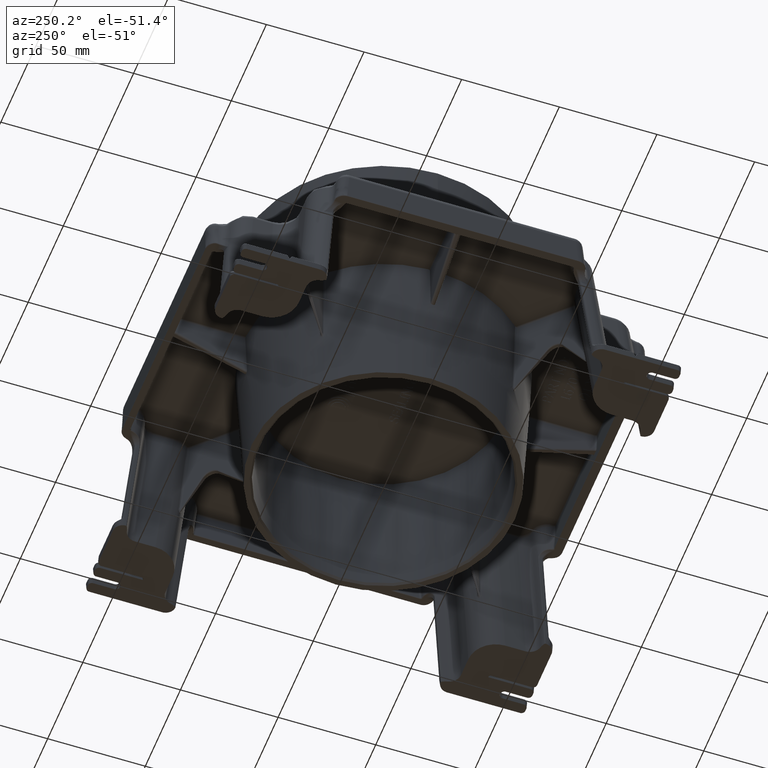
[diagram: clean part render]
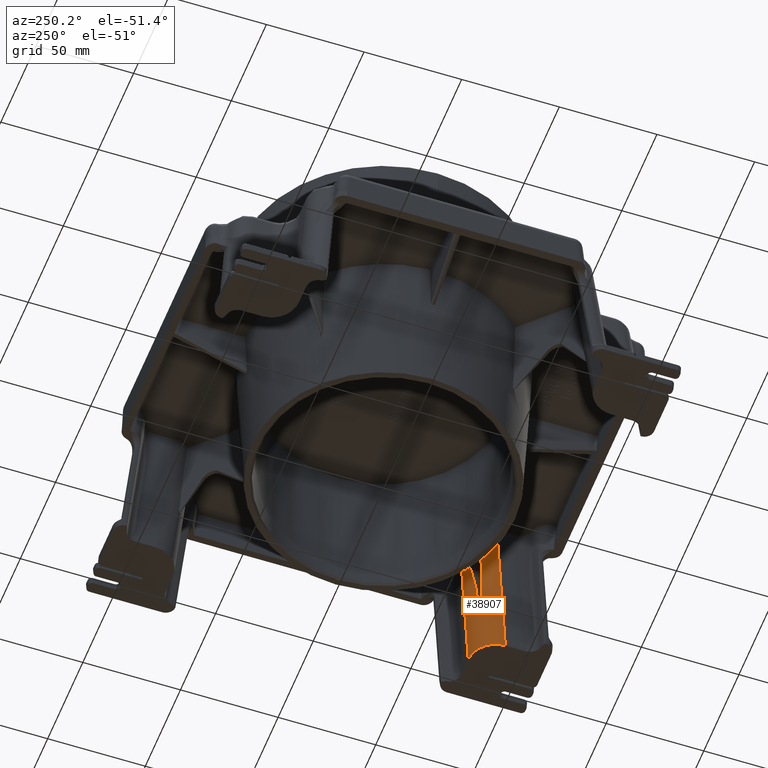
[diagram: same view with one face highlighted and labeled with its STEP entity id]
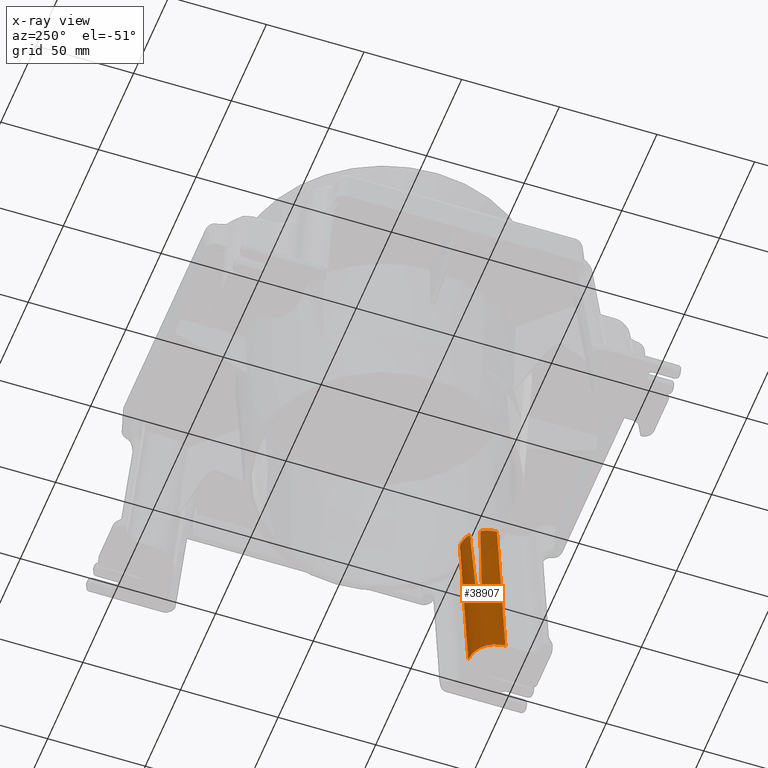
[diagram: x-ray of the same camera — body ghosted, the highlighted face saturated]
A machine part, auxiliary view. The second image highlights one B-rep face of the part: STEP entity #38907.
The next image is the same camera in x-ray: the body ghosted, the highlighted face saturated — about 18% of this face is hidden behind the body in this view.
In plain terms, the highlighted cylindrical surface (edge-blend (fillet) strip) has radius 14 mm, axis along (0.0868, -0.0868, -0.9924).
Its self-contained STEP definition (entity closure, byte-faithful):
#33953=CARTESIAN_POINT('',(76.870245312200865,-76.870245312202144,-49.229548991285917));
#33954=VERTEX_POINT('',#33953);
#36153=CARTESIAN_POINT('',(77.654418546594599,-75.639207626110704,-46.083580553381474));
#36154=VERTEX_POINT('',#36153);
#36169=CARTESIAN_POINT('',(75.14429090806081,-71.229781440092552,-4.879632550422407));
#36170=VERTEX_POINT('',#36169);
#36178=CARTESIAN_POINT('',(90.405722734173139,-90.405722734173125,-89.926214913643108));
#36179=DIRECTION('',(-0.706530168662747,-0.706931169448846,0.032610465054596));
#36180=DIRECTION('',(-0.064018736734754,0.109738240181782,0.991896728489762));
#36181=AXIS2_PLACEMENT_3D('',#36178,#36179,#36180);
#36182=ELLIPSE('',#36181,433.04949450958503,14.000000000000004);
#36183=EDGE_CURVE('',#36170,#36154,#36182,.T.);
#36227=CARTESIAN_POINT('',(77.654418546594584,-75.639207626110689,-46.083580553381452));
#36228=CARTESIAN_POINT('',(77.68724733326151,-75.69641752563021,-46.612519130667195));
#36229=CARTESIAN_POINT('',(77.675333734685069,-75.847170411082359,-47.506042279194666));
#36230=CARTESIAN_POINT('',(77.47009662562327,-76.18231011212859,-48.500466357133703));
#36231=CARTESIAN_POINT('',(77.195804673111212,-76.522762264164015,-49.053214619411811));
#36232=CARTESIAN_POINT('',(76.986183490923693,-76.751748050231853,-49.214923763603188));
#36233=CARTESIAN_POINT('',(76.870245312200794,-76.870245312202186,-49.229548991285732));
#36234=B_SPLINE_CURVE_WITH_KNOTS('',3,(#36227,#36228,#36229,#36230,#36231,#36232,#36233),.UNSPECIFIED.,.F.,.U.,(4,1,1,1,4),(-4.930187E-015,0.159923119454354,0.266538532423927,0.319846238908713,0.373153945393499),.UNSPECIFIED.);
#36235=EDGE_CURVE('',#36154,#33954,#36234,.T.);
#36261=CARTESIAN_POINT('',(71.229781440091841,-75.14429090806189,-4.879632550422409));
#36262=VERTEX_POINT('',#36261);
#36277=CARTESIAN_POINT('',(75.639207626109837,-77.654418546595679,-46.083580553381751));
#36278=VERTEX_POINT('',#36277);
#36286=CARTESIAN_POINT('',(90.405722734178724,-90.405722734178681,-89.926214913706701));
#36287=DIRECTION('',(0.70693116944887,0.706530168662724,0.032610465054596));
#36288=DIRECTION('',(-0.10973824018178,0.064018736734757,0.991896728489762));
#36289=AXIS2_PLACEMENT_3D('',#36286,#36287,#36288);
#36290=ELLIPSE('',#36289,433.04949450963761,14.000000000000021);
#36291=EDGE_CURVE('',#36278,#36262,#36290,.T.);
#36333=CARTESIAN_POINT('',(76.870245312200865,-76.87024531220213,-49.229548991285725));
#36334=CARTESIAN_POINT('',(76.75171066129775,-76.986220072401267,-49.214919148967724));
#36335=CARTESIAN_POINT('',(76.522268622685047,-77.19620739782998,-49.052436037339646));
#36336=CARTESIAN_POINT('',(76.181843419439659,-77.470462101916965,-48.499641931103653));
#36337=CARTESIAN_POINT('',(75.847369461221888,-77.6752593446829,-47.50690656782637));
#36338=CARTESIAN_POINT('',(75.696424181213146,-77.687251152439757,-46.612580665385252));
#36339=CARTESIAN_POINT('',(75.639207626109851,-77.654418546595693,-46.083580553381729));
#36340=B_SPLINE_CURVE_WITH_KNOTS('',3,(#36333,#36334,#36335,#36336,#36337,#36338,#36339),.UNSPECIFIED.,.F.,.U.,(4,1,1,1,4),(-0.373197356715198,-0.319883448613027,-0.266569540510856,-0.159941724306514,-1.381250E-015),.UNSPECIFIED.);
#36341=EDGE_CURVE('',#33954,#36278,#36340,.T.);
#36549=CARTESIAN_POINT('',(68.914538828004638,-82.861264601289065,-4.912844257252338));
#36550=VERTEX_POINT('',#36549);
#36551=CARTESIAN_POINT('',(82.97564169306311,-82.975641693063096,-4.999999999999998));
#36552=DIRECTION('',(0.006148112693582,-0.006148112693582,0.999962199995887));
#36553=DIRECTION('',(-0.70708005254731,0.70708005254731,0.008694744354262));
#36554=AXIS2_PLACEMENT_3D('',#36551,#36552,#36553);
#36555=ELLIPSE('',#36554,14.122479237389534,14.0);
#36556=EDGE_CURVE('',#36262,#36550,#36555,.T.);
#38863=CARTESIAN_POINT('',(82.537622431222729,-82.537622431222701,0.006583072452542));
#38864=DIRECTION('',(0.086826593864248,-0.086826593864248,-0.992432509138967));
#38865=DIRECTION('',(-0.701755757082144,0.701755757082144,-0.122791346617479));
#38866=AXIS2_PLACEMENT_3D('',#38863,#38864,#38865);
#38867=CYLINDRICAL_SURFACE('',#38866,14.000000000000002);
#38868=ORIENTED_EDGE('',*,*,#36183,.F.);
#38869=CARTESIAN_POINT('',(82.861264601289093,-68.914538828004623,-4.912844257252342));
#38870=VERTEX_POINT('',#38869);
#38871=CARTESIAN_POINT('',(82.97564169306311,-82.975641693063096,-4.999999999999998));
#38872=DIRECTION('',(0.006148112693582,-0.006148112693582,0.999962199995887));
#38873=DIRECTION('',(-0.70708005254731,0.70708005254731,0.008694744354262));
#38874=AXIS2_PLACEMENT_3D('',#38871,#38872,#38873);
#38875=ELLIPSE('',#38874,14.122479237389534,14.0);
#38876=EDGE_CURVE('',#38870,#36170,#38875,.T.);
#38877=ORIENTED_EDGE('',*,*,#38876,.F.);
#38878=CARTESIAN_POINT('',(89.605516832236844,-75.658791058952374,-82.000000000000014));
#38879=VERTEX_POINT('',#38878);
#38880=CARTESIAN_POINT('',(82.861264601289093,-68.914538828004623,-4.912844257252342));
#38881=DIRECTION('',(0.086826593864248,-0.086826593864248,-0.992432509138967));
#38882=VECTOR('',#38881,77.674960294910491);
#38883=LINE('',#38880,#38882);
#38884=EDGE_CURVE('',#38870,#38879,#38883,.T.);
#38885=ORIENTED_EDGE('',*,*,#38884,.T.);
#38886=CARTESIAN_POINT('',(75.658791058952389,-89.60551683223683,-82.000000000000014));
#38887=VERTEX_POINT('',#38886);
#38888=CARTESIAN_POINT('',(89.712268784559257,-89.712268784559242,-82.000000000000014));
#38889=DIRECTION('',(0.0,0.0,1.0));
#38890=DIRECTION('',(-0.707106781186548,0.707106781186548,0.0));
#38891=AXIS2_PLACEMENT_3D('',#38888,#38889,#38890);
#38892=ELLIPSE('',#38891,14.106752722304895,14.000000000000002);
#38893=EDGE_CURVE('',#38879,#38887,#38892,.T.);
#38894=ORIENTED_EDGE('',*,*,#38893,.T.);
#38895=CARTESIAN_POINT('',(75.658791058952403,-89.605516832236816,-82.000000000000014));
#38896=DIRECTION('',(-0.086826593864248,0.086826593864248,0.992432509138967));
#38897=VECTOR('',#38896,77.674960294910505);
#38898=LINE('',#38895,#38897);
#38899=EDGE_CURVE('',#38887,#36550,#38898,.T.);
#38900=ORIENTED_EDGE('',*,*,#38899,.T.);
#38901=ORIENTED_EDGE('',*,*,#36556,.F.);
#38902=ORIENTED_EDGE('',*,*,#36291,.F.);
#38903=ORIENTED_EDGE('',*,*,#36341,.F.);
#38904=ORIENTED_EDGE('',*,*,#36235,.F.);
#38905=EDGE_LOOP('',(#38868,#38877,#38885,#38894,#38900,#38901,#38902,#38903,#38904));
#38906=FACE_OUTER_BOUND('',#38905,.T.);
#38907=ADVANCED_FACE('',(#38906),#38867,.T.);